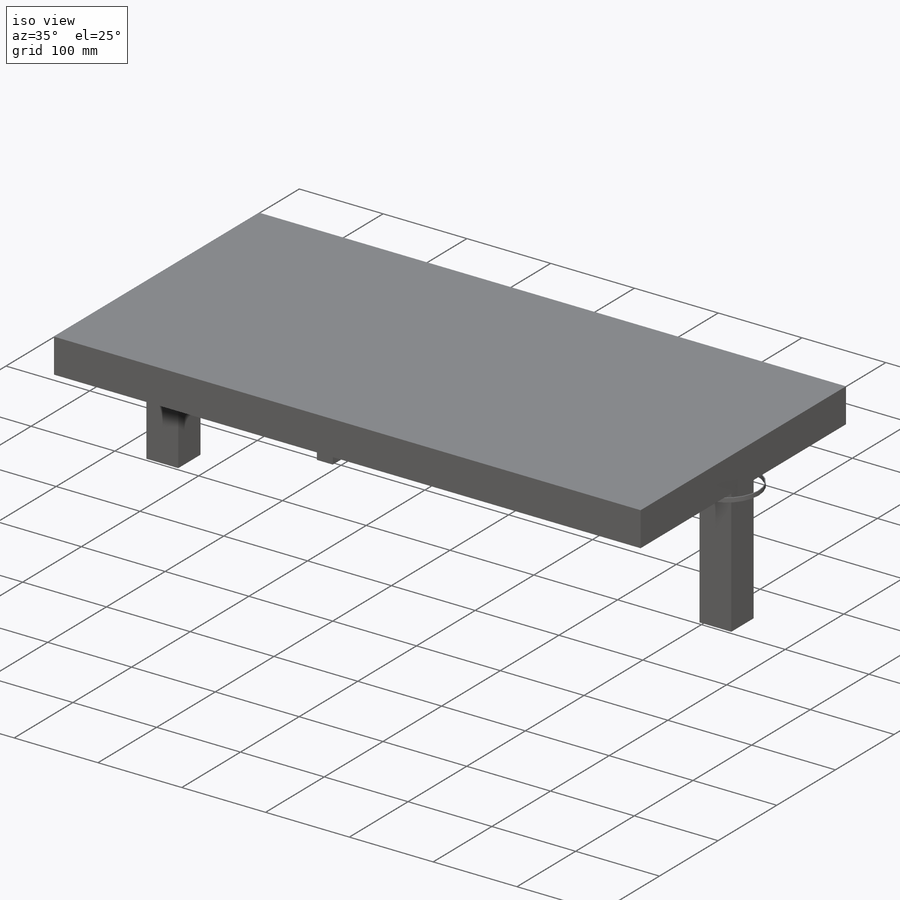
[diagram: iso view]
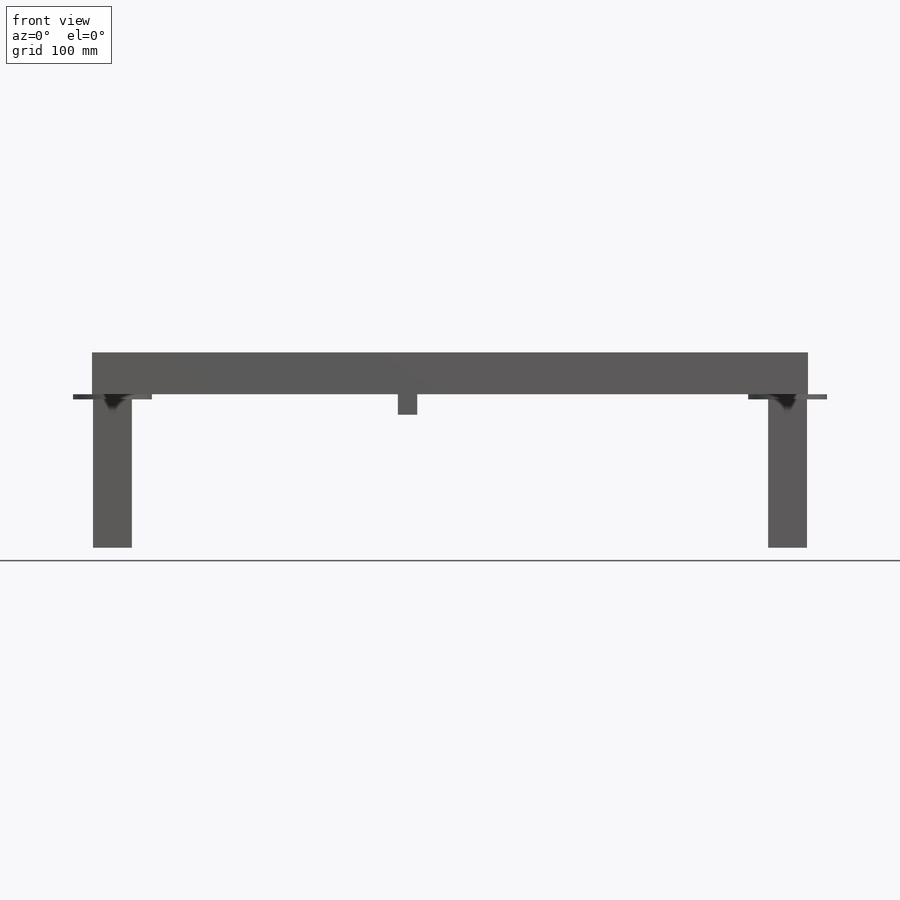
[diagram: front view]
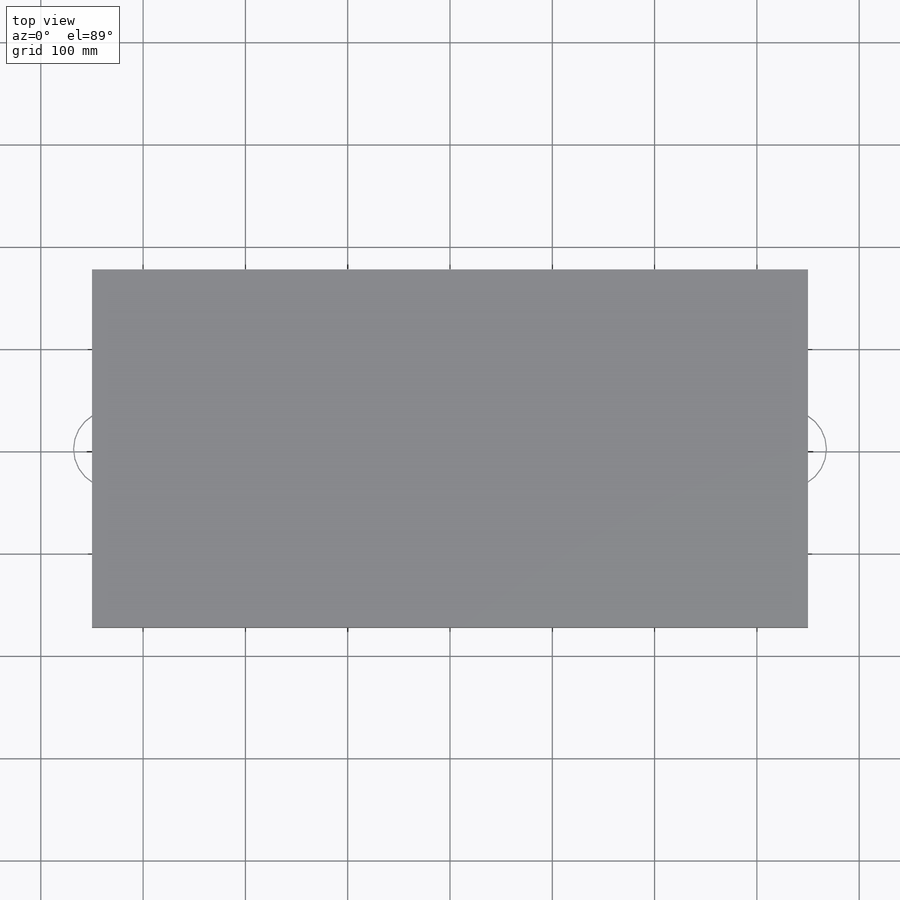
[diagram: top view]
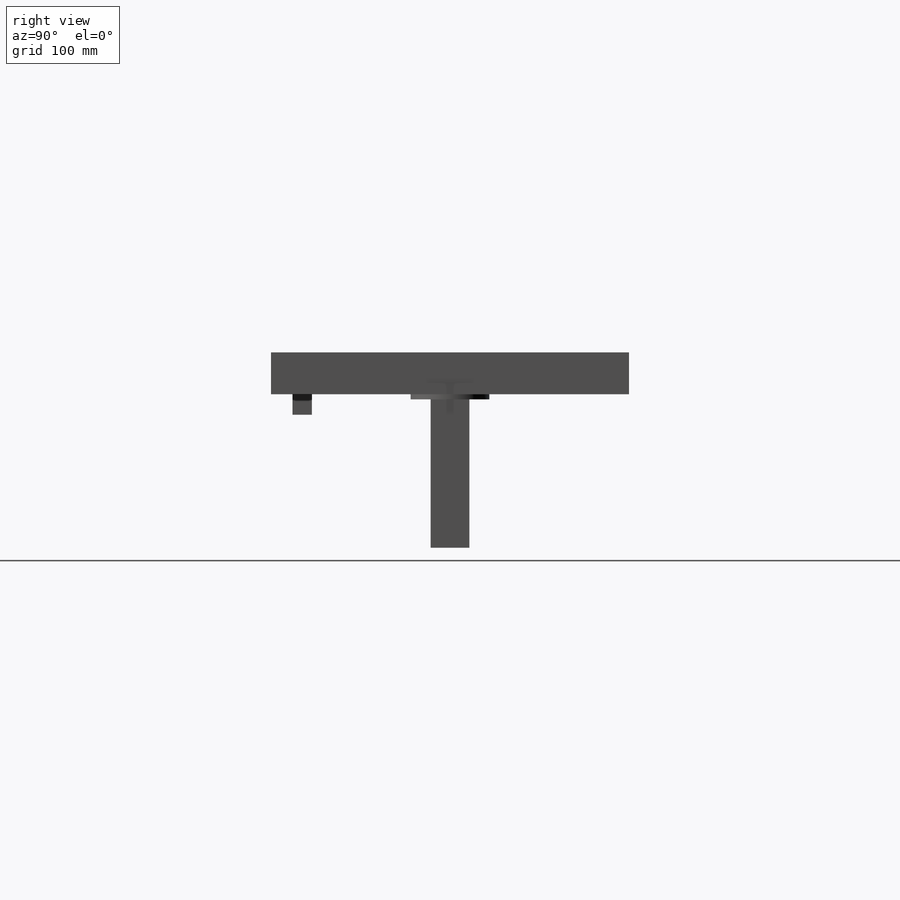
[diagram: right view]
SOLIDWORKS PART (.sldprt)
format: sldprt  version: not decoded by parser v0  size: 233,984 bytes
history: native  units: mm
features: sketch x5, extrude x5, material x1 (+12 scaffold rows collapsed)
feature tree (23):
  scaffold x12  (default folders/planes/origin — collapsed)
  material  "Material <not specified>"
  sketch  "Sketch1"  dims[D1=700.0mm D2=350.0mm D3=40.0mm D4=40.0mm]
  extrude  "Boss-Extrude1"  Depth=40mm
  sketch  "Sketch2"  dims[D1=0.0mm]
  extrude  "Boss-Extrude2"  Depth=1mm
  sketch  "Sketch3"  dims[D1=38.0mm D2=1.0mm D3=1.0mm D4=38.0mm]
  extrude  "Boss-Extrude3"  Depth=150mm
  sketch  "Sketch4"  dims[D1=19.0mm D2=299.0mm D3=19.0mm]
  extrude  "Boss-Extrude4"  Depth=20mm
  sketch  "Sketch5"  dims[D1=75.0mm D2=19.0mm D3=19.0mm D4=1.0mm]
  extrude  "Boss-Extrude5"  Depth=5mm
decode coverage: 10 of 10 modeling features carry decoded parameters
note: suppression state not decoded; provenance and decode notes live in map.json
